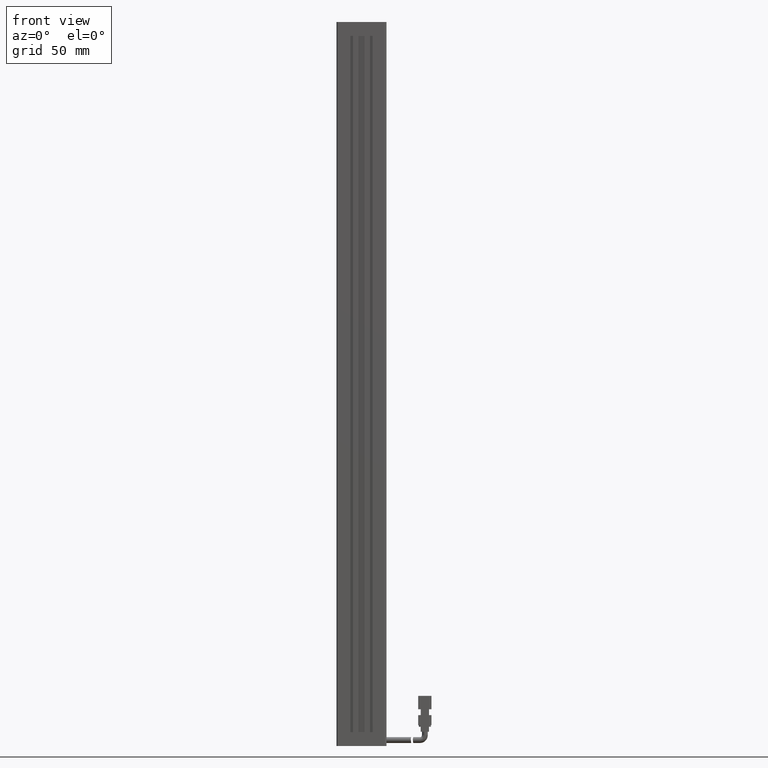
[diagram: clean part render]
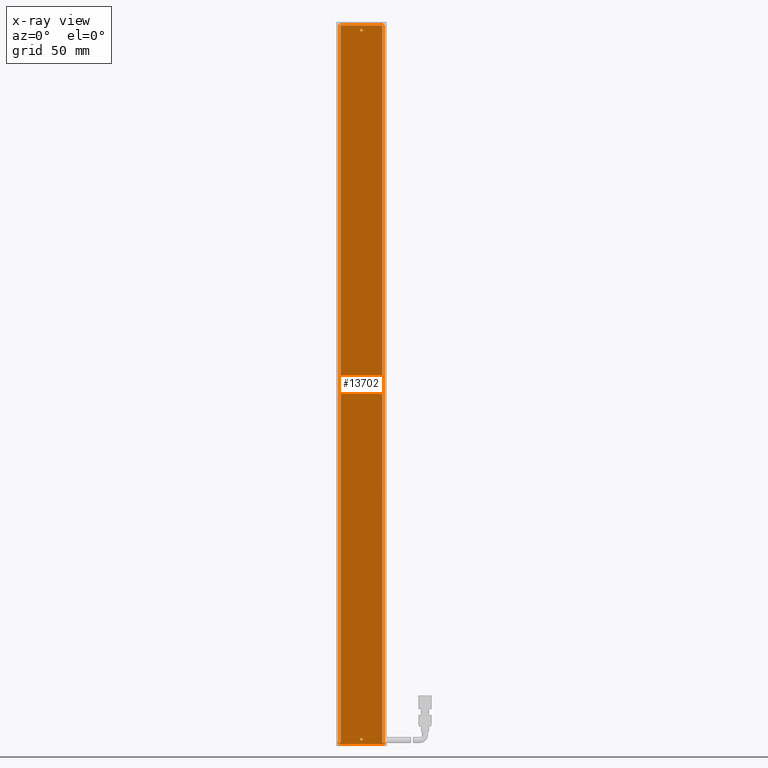
[diagram: x-ray — body ghosted, one internal face saturated and labeled with its STEP entity id]
A machine part, front view, then the same camera in x-ray: the body is ghosted and one INTERNAL B-rep face — a face not visible from any outside direction — is saturated and labeled: STEP entity #13702.
In plain terms, the highlighted planar face has unit normal (-0, 1, 0).
Its self-contained STEP definition (entity closure, byte-faithful):
#297 = VECTOR ( 'NONE', #23579, 1000.000000000000000 ) ;
#649 = ORIENTED_EDGE ( 'NONE', *, *, #19489, .F. ) ;
#798 = DIRECTION ( 'NONE',  ( -0.0000000000000000000, -1.000000000000000000, -0.0000000000000000000 ) ) ;
#905 = LINE ( 'NONE', #8929, #27833 ) ;
#1605 = VECTOR ( 'NONE', #74702, 1000.000000000000000 ) ;
#4293 = DIRECTION ( 'NONE',  ( 0.0000000000000000000, 0.0000000000000000000, 1.000000000000000000 ) ) ;
#6031 = CARTESIAN_POINT ( 'NONE',  ( 53.42537974683542500, 32.19594479660386100, -330.0000000000000000 ) ) ;
#6744 = CARTESIAN_POINT ( 'NONE',  ( 40.92537974683541800, 32.19594479660386100, 97.75000000000008500 ) ) ;
#7806 = CARTESIAN_POINT ( 'NONE',  ( 40.92537974683542500, 32.19594479660386800, -330.0000000000000000 ) ) ;
#7908 = ORIENTED_EDGE ( 'NONE', *, *, #31458, .F. ) ;
#8929 = CARTESIAN_POINT ( 'NONE',  ( 54.32537974683541600, 32.19594479660386100, 100.0000000000000900 ) ) ;
#9214 = CARTESIAN_POINT ( 'NONE',  ( 54.32537974683540200, 32.19594479660386100, -330.0000000000000000 ) ) ;
#10026 = DIRECTION ( 'NONE',  ( -0.0000000000000000000, -0.0000000000000000000, -1.000000000000000000 ) ) ;
#10310 = VECTOR ( 'NONE', #68429, 1000.000000000000000 ) ;
#12679 = VERTEX_POINT ( 'NONE', #21586 ) ;
#13702 = ADVANCED_FACE ( 'NONE', ( #18501, #69450, #51157 ), #26269, .F. ) ;
#13889 = EDGE_LOOP ( 'NONE', ( #50005, #47237 ) ) ;
#16046 = DIRECTION ( 'NONE',  ( -0.0000000000000000000, -1.000000000000000000, -0.0000000000000000000 ) ) ;
#16353 = VERTEX_POINT ( 'NONE', #6744 ) ;
#17700 = VERTEX_POINT ( 'NONE', #57599 ) ;
#18501 = FACE_OUTER_BOUND ( 'NONE', #65038, .T. ) ;
#18536 = LINE ( 'NONE', #42430, #65612 ) ;
#18660 = VERTEX_POINT ( 'NONE', #9214 ) ;
#19489 = EDGE_CURVE ( 'NONE', #12679, #32051, #76586, .T. ) ;
#20371 = DIRECTION ( 'NONE',  ( -0.0000000000000000000, 1.000000000000000000, 0.0000000000000000000 ) ) ;
#21586 = CARTESIAN_POINT ( 'NONE',  ( 40.92537974683534700, 32.19594479660386100, -328.7499999999998900 ) ) ;
#22560 = VERTEX_POINT ( 'NONE', #70717 ) ;
#22861 = DIRECTION ( 'NONE',  ( -0.0000000000000000000, -1.000000000000000000, -0.0000000000000000000 ) ) ;
#23579 = DIRECTION ( 'NONE',  ( 1.000000000000000000, 0.0000000000000000000, -5.551115123125781500E-017 ) ) ;
#24475 = VERTEX_POINT ( 'NONE', #6031 ) ;
#25461 = CARTESIAN_POINT ( 'NONE',  ( 54.32537974683540200, 32.19594479660386100, -330.9999999999998900 ) ) ;
#26269 = PLANE ( 'NONE',  #33106 ) ;
#26278 = AXIS2_PLACEMENT_3D ( 'NONE', #52822, #16046, #59014 ) ;
#26765 = ORIENTED_EDGE ( 'NONE', *, *, #40560, .T. ) ;
#26944 = VECTOR ( 'NONE', #10026, 1000.000000000000000 ) ;
#27833 = VECTOR ( 'NONE', #64302, 1000.000000000000000 ) ;
#30348 = DIRECTION ( 'NONE',  ( -0.0000000000000000000, -0.0000000000000000000, -1.000000000000000000 ) ) ;
#31458 = EDGE_CURVE ( 'NONE', #32051, #12679, #44422, .T. ) ;
#32051 = VERTEX_POINT ( 'NONE', #64161 ) ;
#33063 = EDGE_CURVE ( 'NONE', #40298, #17700, #65033, .T. ) ;
#33106 = AXIS2_PLACEMENT_3D ( 'NONE', #57141, #20371, #63336 ) ;
#34274 = CARTESIAN_POINT ( 'NONE',  ( 54.32537974683536700, 32.19594479660386100, -330.9999999999998900 ) ) ;
#34893 = VECTOR ( 'NONE', #56998, 1000.000000000000000 ) ;
#36180 = EDGE_CURVE ( 'NONE', #36672, #24475, #18536, .T. ) ;
#36612 = LINE ( 'NONE', #45095, #67321 ) ;
#36672 = VERTEX_POINT ( 'NONE', #54169 ) ;
#37394 = EDGE_CURVE ( 'NONE', #18660, #69614, #905, .T. ) ;
#37607 = CARTESIAN_POINT ( 'NONE',  ( 40.92537974683534700, 32.19594479660386100, -327.9999999999998900 ) ) ;
#37970 = CARTESIAN_POINT ( 'NONE',  ( 40.92537974683542500, 32.19594479660386800, -330.0000000000000000 ) ) ;
#38017 = EDGE_CURVE ( 'NONE', #16353, #52540, #48649, .T. ) ;
#40298 = VERTEX_POINT ( 'NONE', #74270 ) ;
#40397 = CIRCLE ( 'NONE', #71416, 0.7500000000000006700 ) ;
#40560 = EDGE_CURVE ( 'NONE', #75677, #40298, #59618, .T. ) ;
#40704 = CARTESIAN_POINT ( 'NONE',  ( 28.42537974683542100, 32.19594479660386800, 102.0000000000000000 ) ) ;
#41084 = ORIENTED_EDGE ( 'NONE', *, *, #67333, .F. ) ;
#41100 = DIRECTION ( 'NONE',  ( -0.0000000000000000000, -1.000000000000000000, -0.0000000000000000000 ) ) ;
#42430 = CARTESIAN_POINT ( 'NONE',  ( 53.42537974683542500, 32.19594479660386800, 102.0000000000000000 ) ) ;
#43353 = EDGE_CURVE ( 'NONE', #24475, #18660, #49226, .T. ) ;
#43761 = DIRECTION ( 'NONE',  ( 0.0000000000000000000, 0.0000000000000000000, 1.000000000000000000 ) ) ;
#44422 = CIRCLE ( 'NONE', #26278, 0.7499999999999729100 ) ;
#45095 = CARTESIAN_POINT ( 'NONE',  ( 27.52537974683537000, 32.19594479660386100, 100.0000000000000900 ) ) ;
#45932 = ORIENTED_EDGE ( 'NONE', *, *, #43353, .F. ) ;
#47237 = ORIENTED_EDGE ( 'NONE', *, *, #70789, .F. ) ;
#47376 = EDGE_CURVE ( 'NONE', #75677, #36672, #47383, .T. ) ;
#47383 = LINE ( 'NONE', #60375, #297 ) ;
#48649 = CIRCLE ( 'NONE', #68542, 0.7500000000000006700 ) ;
#49226 = LINE ( 'NONE', #7806, #34893 ) ;
#50005 = ORIENTED_EDGE ( 'NONE', *, *, #38017, .F. ) ;
#51157 = FACE_BOUND ( 'NONE', #71948, .T. ) ;
#51239 = DIRECTION ( 'NONE',  ( 5.551115123125781500E-017, 0.0000000000000000000, 1.000000000000000000 ) ) ;
#52540 = VERTEX_POINT ( 'NONE', #55537 ) ;
#52822 = CARTESIAN_POINT ( 'NONE',  ( 40.92537974683534700, 32.19594479660386100, -327.9999999999998900 ) ) ;
#53144 = ORIENTED_EDGE ( 'NONE', *, *, #59878, .F. ) ;
#54169 = CARTESIAN_POINT ( 'NONE',  ( 53.42537974683542500, 32.19594479660386800, 99.99999999999998600 ) ) ;
#55537 = CARTESIAN_POINT ( 'NONE',  ( 40.92537974683541800, 32.19594479660386100, 96.25000000000008500 ) ) ;
#56480 = ORIENTED_EDGE ( 'NONE', *, *, #37394, .F. ) ;
#56998 = DIRECTION ( 'NONE',  ( 1.000000000000000000, 0.0000000000000000000, 0.0000000000000000000 ) ) ;
#57141 = CARTESIAN_POINT ( 'NONE',  ( 54.32537974683541600, 32.19594479660386100, 100.0000000000000900 ) ) ;
#57447 = LINE ( 'NONE', #25461, #10310 ) ;
#57599 = CARTESIAN_POINT ( 'NONE',  ( 27.52537974683534500, 32.19594479660386800, -330.0000000000000000 ) ) ;
#59014 = DIRECTION ( 'NONE',  ( 0.0000000000000000000, 0.0000000000000000000, 1.000000000000000000 ) ) ;
#59129 = ORIENTED_EDGE ( 'NONE', *, *, #47376, .F. ) ;
#59618 = LINE ( 'NONE', #40704, #26944 ) ;
#59662 = CARTESIAN_POINT ( 'NONE',  ( 40.92537974683541800, 32.19594479660386100, 97.00000000000008500 ) ) ;
#59878 = EDGE_CURVE ( 'NONE', #69614, #22560, #57447, .T. ) ;
#60375 = CARTESIAN_POINT ( 'NONE',  ( 54.32537974683541600, 32.19594479660386100, 100.0000000000000900 ) ) ;
#60379 = CARTESIAN_POINT ( 'NONE',  ( 28.42537974683542100, 32.19594479660386100, 100.0000000000000900 ) ) ;
#63336 = DIRECTION ( 'NONE',  ( 5.551115123125781500E-017, 0.0000000000000000000, 1.000000000000000000 ) ) ;
#64161 = CARTESIAN_POINT ( 'NONE',  ( 40.92537974683534700, 32.19594479660386100, -327.2499999999999400 ) ) ;
#64302 = DIRECTION ( 'NONE',  ( -5.551115123125781500E-017, -0.0000000000000000000, -1.000000000000000000 ) ) ;
#64617 = ORIENTED_EDGE ( 'NONE', *, *, #36180, .F. ) ;
#65033 = LINE ( 'NONE', #37970, #1605 ) ;
#65038 = EDGE_LOOP ( 'NONE', ( #64617, #59129, #26765, #79240, #41084, #53144, #56480, #45932 ) ) ;
#65612 = VECTOR ( 'NONE', #30348, 1000.000000000000000 ) ;
#65792 = DIRECTION ( 'NONE',  ( 0.0000000000000000000, 0.0000000000000000000, 1.000000000000000000 ) ) ;
#67321 = VECTOR ( 'NONE', #51239, 1000.000000000000000 ) ;
#67333 = EDGE_CURVE ( 'NONE', #22560, #17700, #36612, .T. ) ;
#68429 = DIRECTION ( 'NONE',  ( -1.000000000000000000, -0.0000000000000000000, 5.551115123125781500E-017 ) ) ;
#68542 = AXIS2_PLACEMENT_3D ( 'NONE', #59662, #22861, #65792 ) ;
#69450 = FACE_BOUND ( 'NONE', #13889, .T. ) ;
#69614 = VERTEX_POINT ( 'NONE', #34274 ) ;
#70717 = CARTESIAN_POINT ( 'NONE',  ( 27.52537974683534500, 32.19594479660386100, -330.9999999999998900 ) ) ;
#70789 = EDGE_CURVE ( 'NONE', #52540, #16353, #40397, .T. ) ;
#71416 = AXIS2_PLACEMENT_3D ( 'NONE', #77891, #41100, #4293 ) ;
#71948 = EDGE_LOOP ( 'NONE', ( #7908, #649 ) ) ;
#74270 = CARTESIAN_POINT ( 'NONE',  ( 28.42537974683542100, 32.19594479660386800, -330.0000000000000000 ) ) ;
#74702 = DIRECTION ( 'NONE',  ( -1.000000000000000000, -0.0000000000000000000, 0.0000000000000000000 ) ) ;
#75543 = AXIS2_PLACEMENT_3D ( 'NONE', #37607, #798, #43761 ) ;
#75677 = VERTEX_POINT ( 'NONE', #60379 ) ;
#76586 = CIRCLE ( 'NONE', #75543, 0.7499999999999729100 ) ;
#77891 = CARTESIAN_POINT ( 'NONE',  ( 40.92537974683541800, 32.19594479660386100, 97.00000000000008500 ) ) ;
#79240 = ORIENTED_EDGE ( 'NONE', *, *, #33063, .T. ) ;